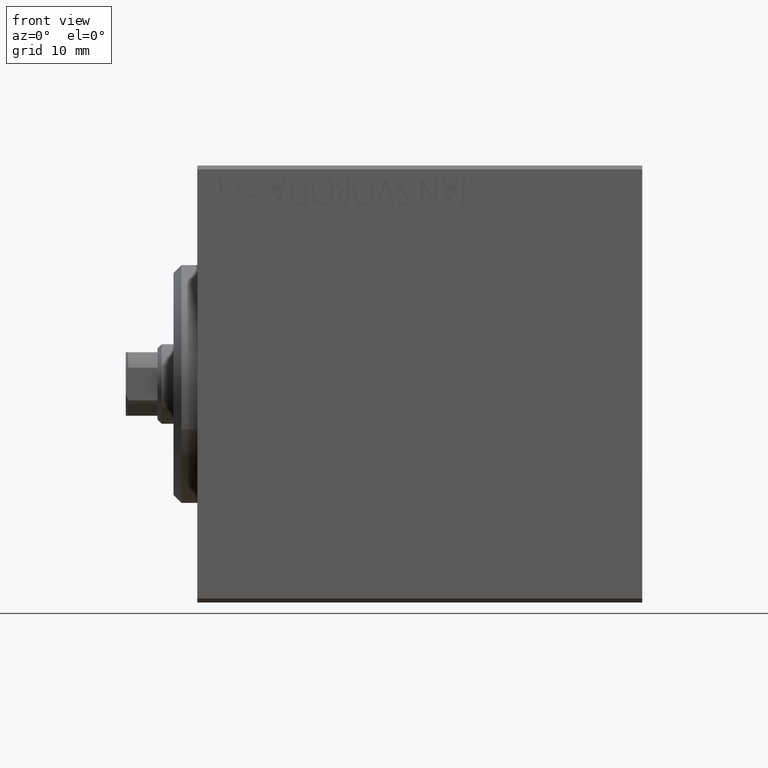
[diagram: clean part render]
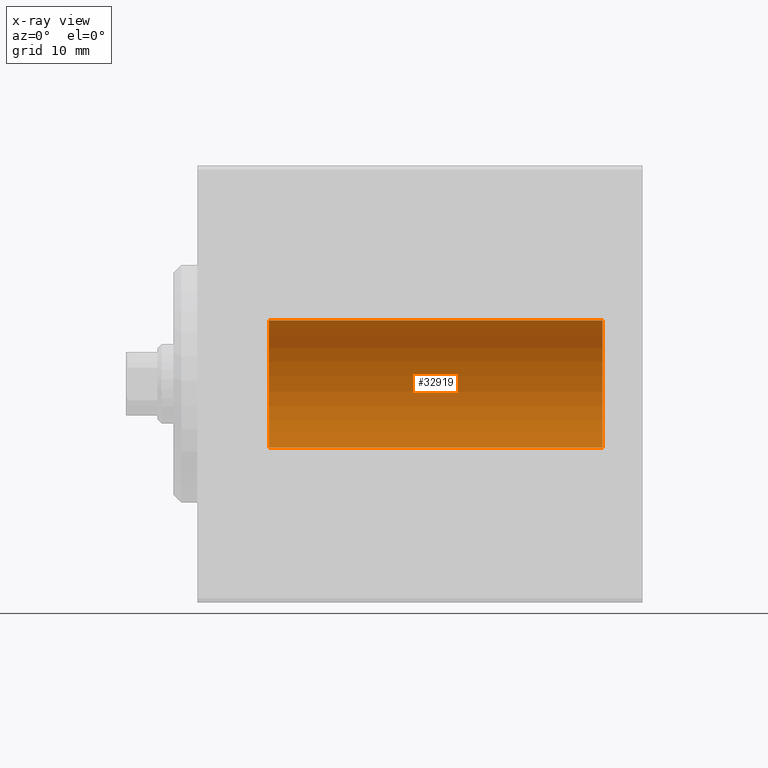
[diagram: x-ray — body ghosted, one internal face saturated and labeled with its STEP entity id]
A machine part, front view, then the same camera in x-ray: the body is ghosted and one INTERNAL B-rep face — a face not visible from any outside direction — is saturated and labeled: STEP entity #32919.
In plain terms, the highlighted cylindrical surface (partial cylindrical patch) has radius 8 mm, axis along (-1, -0, -0).
Its self-contained STEP definition (entity closure, byte-faithful):
#1240 = DIRECTION ( 'NONE',  ( -1.000000000000000000, 0.000000000000000000, 0.000000000000000000 ) ) ;
#2973 = DIRECTION ( 'NONE',  ( -1.000000000000000000, -0.000000000000000000, -0.000000000000000000 ) ) ;
#3717 = CARTESIAN_POINT ( 'NONE',  ( 9.000000000000001776, 9.797174393178823685E-16, -7.999999999999998224 ) ) ;
#5449 = ORIENTED_EDGE ( 'NONE', *, *, #14670, .F. ) ;
#6102 = EDGE_LOOP ( 'NONE', ( #37819, #5449, #33292, #40548 ) ) ;
#6454 = VECTOR ( 'NONE', #2973, 1000.000000000000000 ) ;
#6487 = CYLINDRICAL_SURFACE ( 'NONE', #13062, 7.999999999999998224 ) ;
#7141 = VERTEX_POINT ( 'NONE', #3717 ) ;
#8768 = CARTESIAN_POINT ( 'NONE',  ( 9.000000000000001776, 0.000000000000000000, 0.000000000000000000 ) ) ;
#11318 = VERTEX_POINT ( 'NONE', #14753 ) ;
#13062 = AXIS2_PLACEMENT_3D ( 'NONE', #16918, #20027, #30463 ) ;
#14670 = EDGE_CURVE ( 'NONE', #11318, #38904, #15536, .T. ) ;
#14753 = CARTESIAN_POINT ( 'NONE',  ( 51.00000000000000000, 0.000000000000000000, 7.999999999999998224 ) ) ;
#14757 = DIRECTION ( 'NONE',  ( 0.000000000000000000, 0.000000000000000000, 1.000000000000000000 ) ) ;
#14767 = EDGE_CURVE ( 'NONE', #11318, #32824, #15845, .T. ) ;
#15536 = CIRCLE ( 'NONE', #16377, 7.999999999999998224 ) ;
#15845 = LINE ( 'NONE', #36707, #6454 ) ;
#16377 = AXIS2_PLACEMENT_3D ( 'NONE', #34966, #1240, #14757 ) ;
#16918 = CARTESIAN_POINT ( 'NONE',  ( 51.00000000000000000, 0.000000000000000000, 0.000000000000000000 ) ) ;
#17350 = LINE ( 'NONE', #30897, #18147 ) ;
#17894 = CIRCLE ( 'NONE', #22843, 7.999999999999998224 ) ;
#18147 = VECTOR ( 'NONE', #41765, 1000.000000000000000 ) ;
#20027 = DIRECTION ( 'NONE',  ( -1.000000000000000000, -0.000000000000000000, -0.000000000000000000 ) ) ;
#20499 = CARTESIAN_POINT ( 'NONE',  ( 51.00000000000000000, 9.797174393178823685E-16, -7.999999999999998224 ) ) ;
#20694 = CARTESIAN_POINT ( 'NONE',  ( 9.000000000000001776, 0.000000000000000000, 7.999999999999998224 ) ) ;
#21165 = EDGE_CURVE ( 'NONE', #32824, #7141, #17894, .T. ) ;
#22843 = AXIS2_PLACEMENT_3D ( 'NONE', #8768, #32303, #42301 ) ;
#30463 = DIRECTION ( 'NONE',  ( 0.000000000000000000, 0.000000000000000000, 1.000000000000000000 ) ) ;
#30897 = CARTESIAN_POINT ( 'NONE',  ( 51.00000000000000000, 9.797174393178823685E-16, -7.999999999999998224 ) ) ;
#32303 = DIRECTION ( 'NONE',  ( -1.000000000000000000, 0.000000000000000000, 0.000000000000000000 ) ) ;
#32824 = VERTEX_POINT ( 'NONE', #20694 ) ;
#32919 = ADVANCED_FACE ( 'NONE', ( #36684 ), #6487, .F. ) ;
#33292 = ORIENTED_EDGE ( 'NONE', *, *, #14767, .T. ) ;
#34966 = CARTESIAN_POINT ( 'NONE',  ( 51.00000000000000000, 0.000000000000000000, 0.000000000000000000 ) ) ;
#36684 = FACE_OUTER_BOUND ( 'NONE', #6102, .T. ) ;
#36707 = CARTESIAN_POINT ( 'NONE',  ( 51.00000000000000000, 0.000000000000000000, 7.999999999999998224 ) ) ;
#36951 = EDGE_CURVE ( 'NONE', #38904, #7141, #17350, .T. ) ;
#37819 = ORIENTED_EDGE ( 'NONE', *, *, #36951, .F. ) ;
#38904 = VERTEX_POINT ( 'NONE', #20499 ) ;
#40548 = ORIENTED_EDGE ( 'NONE', *, *, #21165, .T. ) ;
#41765 = DIRECTION ( 'NONE',  ( -1.000000000000000000, -0.000000000000000000, -0.000000000000000000 ) ) ;
#42301 = DIRECTION ( 'NONE',  ( 0.000000000000000000, 0.000000000000000000, 1.000000000000000000 ) ) ;